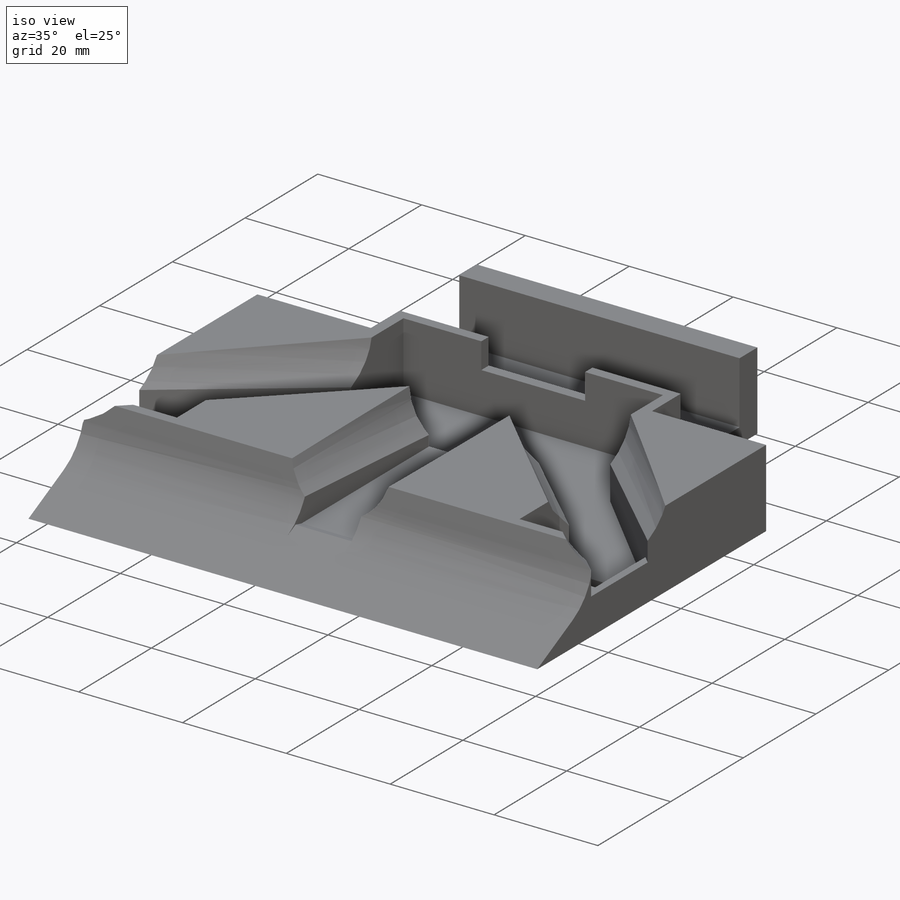
[diagram: iso view]
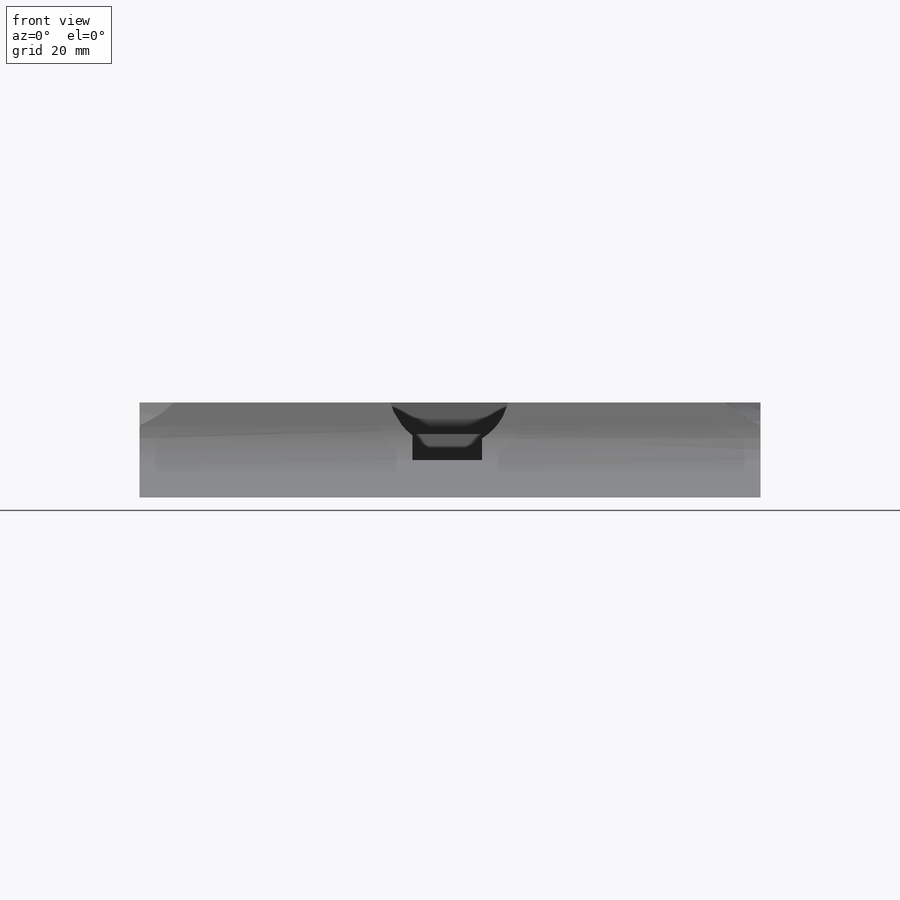
[diagram: front view]
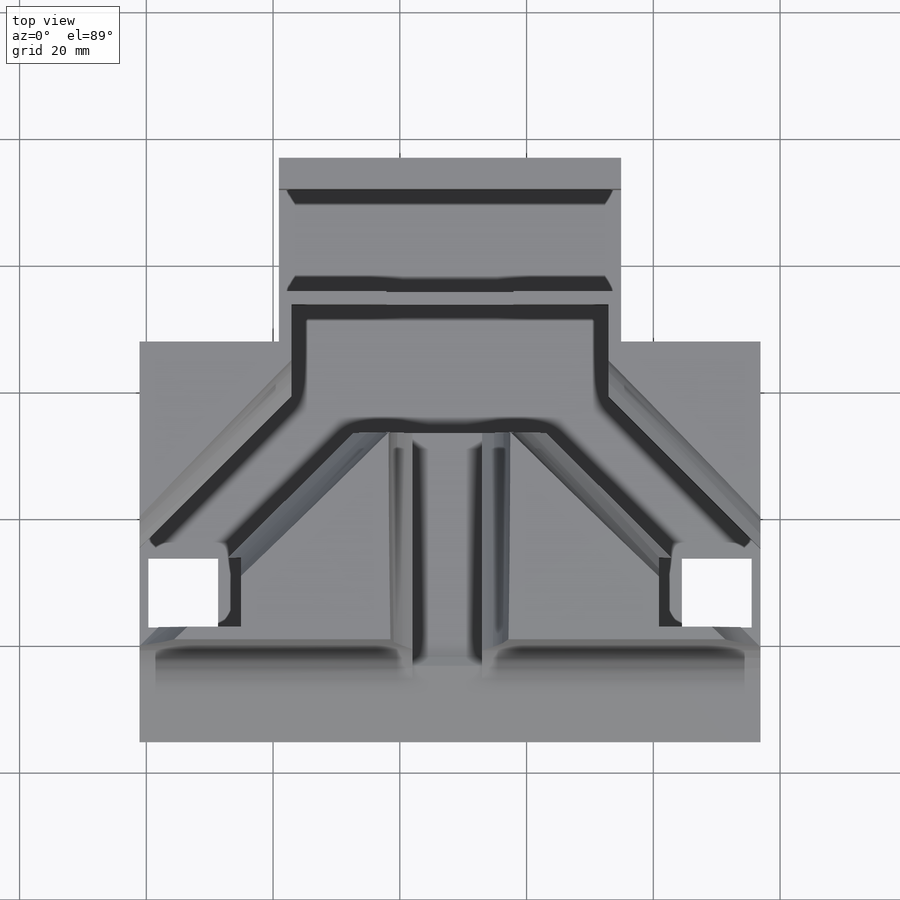
[diagram: top view]
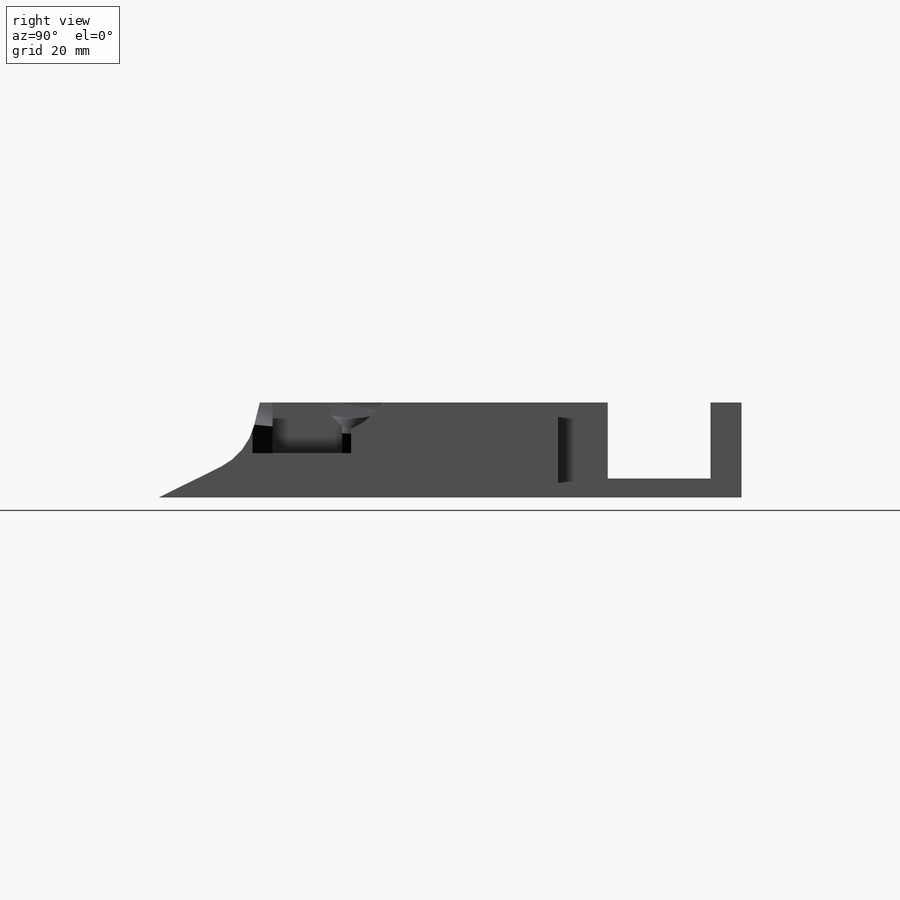
[diagram: right view]
SOLIDWORKS PART (.sldprt)
format: sldprt  version: not decoded by parser v0  size: 883,712 bytes
history: native  units: mm
features: sketch x45, cut_extrude x29, extrude x16, material x1, fillet x1 (+12 scaffold rows collapsed)
feature tree (104):
  scaffold x12  (default folders/planes/origin — collapsed)
  material  "Material <not specified>"
  sketch  "Sketch1"  dims[D1=98.0mm D2=90.0mm]
  extrude  "Boss-Extrude1"  Depth=15mm
  sketch  "Sketch3"  dims[D1=35.0mm D2=35.0mm D3=35.0mm]
  cut_extrude  "Cut-Extrude1"  Depth=15mm
  sketch  "Sketch4"
  cut_extrude  "Cut-Extrude2"  Depth=15mm
  sketch  "Sketch5"  dims[D1=1.0mm]
  cut_extrude  "Cut-Extrude5"  Depth=100mm
  sketch  "Sketch8"  dims[D1=1.0mm]
  cut_extrude  "Cut-Extrude6"  Depth=100mm
  sketch  "Sketch9"  dims[D1=18.0mm D2=15.0mm]
  cut_extrude  "Cut-Extrude7"  Depth=45mm
  sketch  "Sketch10"  dims[D1=18.0mm D2=15.0mm]
  cut_extrude  "Cut-Extrude8"  Depth=45mm
  sketch  "Sketch12"  dims[D1=1.0mm]
  extrude  "Boss-Extrude3"  Depth=100mm
  sketch  "Sketch13"  dims[D1=1.0mm]
  extrude  "Boss-Extrude4"  Depth=100mm
  sketch  "Sketch14"
  cut_extrude  "Cut-Extrude9"  Depth=100mm
  sketch  "Sketch15"
  cut_extrude  "Cut-Extrude10"  Depth=100mm
  sketch  "Sketch16"
  extrude  "Boss-Extrude5"  Depth=15mm
  sketch  "Sketch17"
  extrude  "Boss-Extrude6"  Depth=15mm
  sketch  "Sketch18"
  extrude  "Boss-Extrude7"  Depth=15mm
  sketch  "Sketch19"  dims[D1=1.0mm]
  cut_extrude  "Cut-Extrude11"  Depth=100mm
  sketch  "Sketch20"  dims[D1=49.0mm D2=18.0mm]
  cut_extrude  "Cut-Extrude12"  Depth=45mm
  sketch  "Sketch21"  dims[D1=2.0mm]
  cut_extrude  "Cut-Extrude13"  Depth=100mm
  sketch  "Sketch22"
  extrude  "Boss-Extrude8"  Depth=55mm
  sketch  "Sketch23"  dims[D1=~17.023265mm]
  cut_extrude  "Cut-Extrude14"  Depth=55mm
  sketch  "Sketch24"  dims[D1=2.0mm]
  cut_extrude  "Cut-Extrude15"  Depth=100mm
  sketch  "Sketch25"
  extrude  "Boss-Extrude10"  Depth=100mm
  sketch  "Sketch26"
  cut_extrude  "Cut-Extrude16"  Depth=100mm
  sketch  "Sketch27"
  cut_extrude  "Cut-Extrude19"  Depth=100mm
  sketch  "Sketch28"
  cut_extrude  "Cut-Extrude20"  Depth=100mm
  sketch  "Sketch29"
  cut_extrude  "Cut-Extrude21"  Depth=100mm
  sketch  "Sketch30"  dims[D1=22.0mm D2=32.0mm D3=22.0mm]
  cut_extrude  "Cut-Extrude22"  Depth=100mm
  sketch  "Sketch31"  dims[D1=16.2mm D2=12.0mm D3=7.9mm D4=7.9mm]
  cut_extrude  "Cut-Extrude23"  Depth=100mm
  sketch  "Sketch32"  dims[D1=2.0mm D2=2.0mm D3=2.0mm]
  cut_extrude  "Cut-Extrude24"  Depth=13mm
  sketch  "Sketch33"
  extrude  "Boss-Extrude12"  Depth=15mm
  sketch  "Sketch34"  dims[D1=20.0mm D2=17.0mm D3=17.0mm]
  cut_extrude  "Cut-Extrude25"  Depth=5mm
  sketch  "Sketch35"  dims[D1=8.0mm D2=10.0mm D3=3.0mm]
  cut_extrude  "Cut-Extrude27"  Depth=100mm
  sketch  "Sketch37"  dims[D1=11.0mm D2=14.0mm D3=2.0mm D4=2.0mm D5=14.0mm D6=2.0mm]
  cut_extrude  "Cut-Extrude28"  Depth=13mm
  sketch  "Sketch38"  dims[D1=11.0mm D2=35.0mm]
  cut_extrude  "Cut-Extrude32"  Depth=9.5mm
  sketch  "Sketch39"  dims[D1=11.0mm D2=3.78mm D3=~3.775973mm]
  cut_extrude  "Cut-Extrude33"  Depth=13mm
  sketch  "Sketch40"  dims[D1=11.0mm D2=3.78mm D3=~3.782413mm]
  cut_extrude  "Cut-Extrude34"  Depth=13mm
  sketch  "Sketch41"  dims[c1.D1=2.0mm c1.D2=2.0mm c2.D1=2.0mm c2.D2=2.0mm]
  extrude  "Boss-Extrude18"  Depth=5mm
  sketch  "Sketch42"  dims[D1=2.0mm D2=2.0mm]
  extrude  "Boss-Extrude19"  Depth=5mm
  sketch  "Sketch43"  dims[D1=13.0mm D2=0.0mm]
  extrude  "Boss-Extrude21"  Depth=98mm
  sketch  "Sketch45"
  extrude  "Boss-Extrude22"  Depth=98mm
  sketch  "Sketch46"
  extrude  "Boss-Extrude23"  Depth=98mm
  sketch  "Sketch47"
  cut_extrude  "Cut-Extrude36"  Depth=98mm
  sketch  "Sketch48"  dims[D1=11.0mm D2=11.0mm D3=0.0mm D4=11.0mm D5=11.0mm D6=0.0mm]
  cut_extrude  "Cut-Extrude37"  Depth=98mm
  sketch  "Sketch49"
  extrude  "Boss-Extrude24"  Depth=5mm
  sketch  "Sketch50"
  extrude  "Boss-Extrude25"  Depth=5mm
  fillet  "Fillet1"  Radius=10mm
  sketch  "Sketch52"  dims[D1=3.0mm]
  cut_extrude  "Cut-Extrude39"  Depth=100mm
decode coverage: 73 of 91 modeling features carry decoded parameters
note: ~ marks probable driven/reference dimensions
note: suppression state not decoded; provenance and decode notes live in map.json
